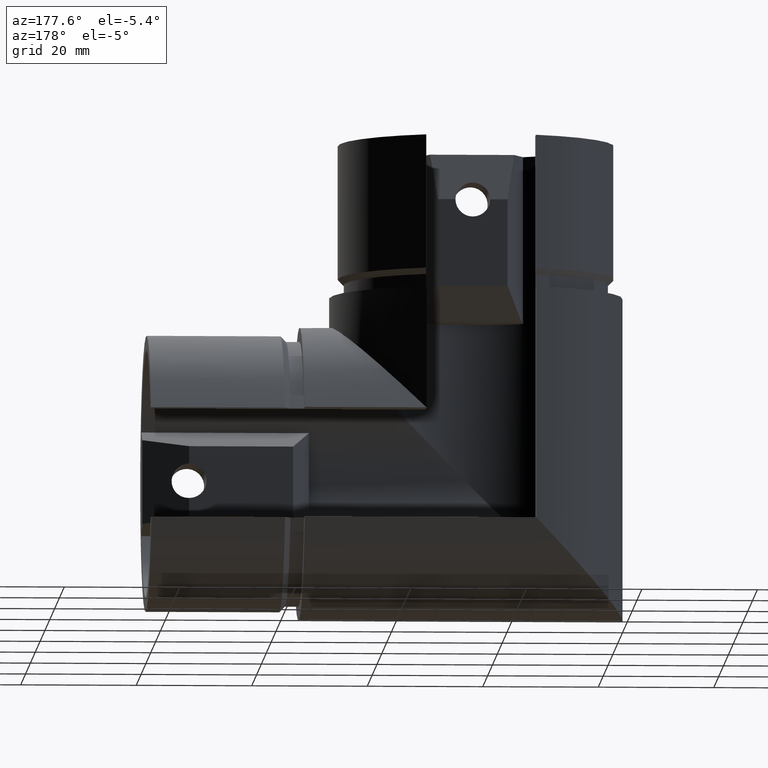
[diagram: clean part render]
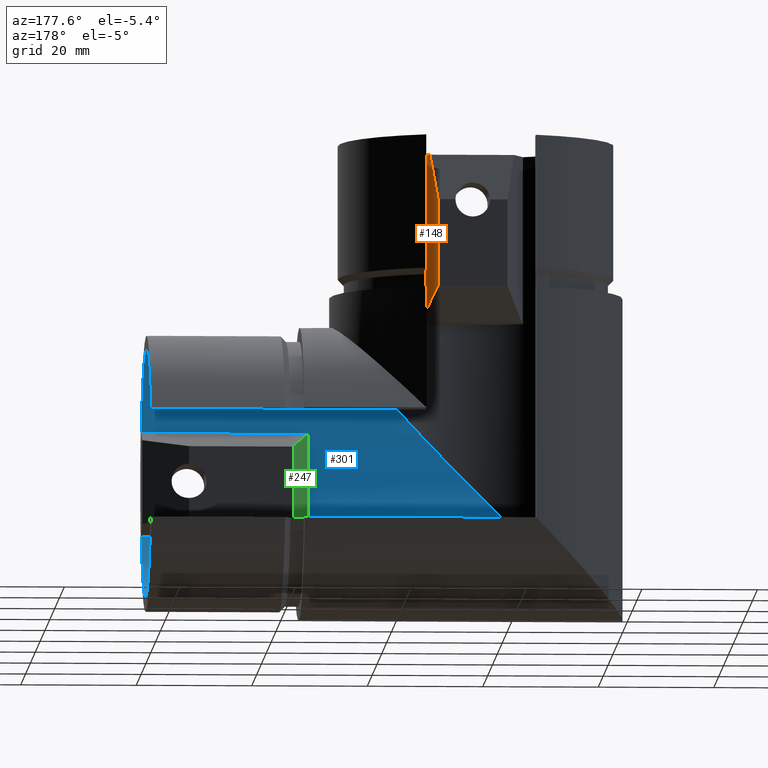
[diagram: same view with three faces highlighted in distinct colors, each labeled with its STEP entity id]
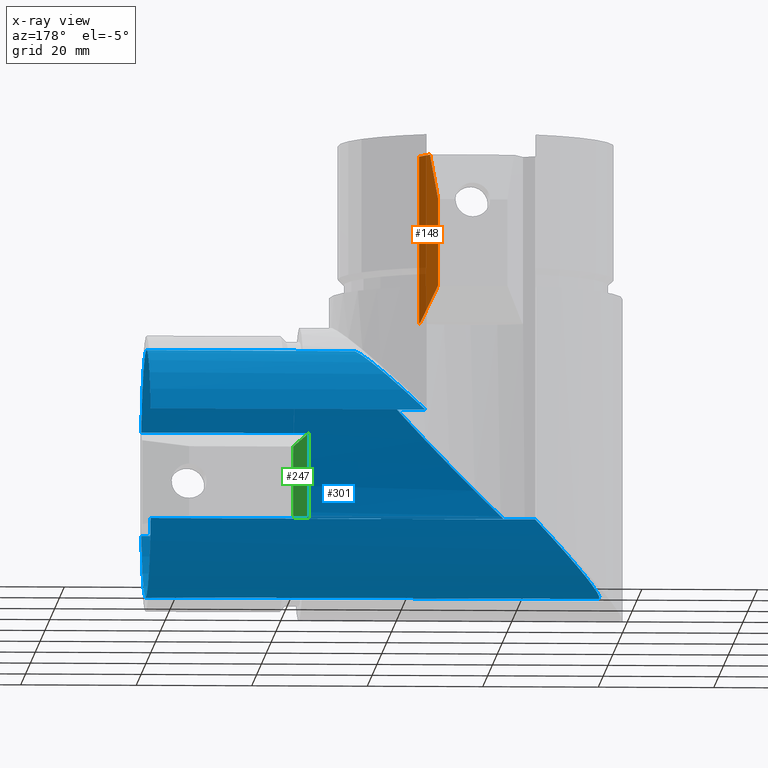
[diagram: x-ray of the same camera — body ghosted, the three highlighted faces saturated]
A machine part, auxiliary view with three faces highlighted in distinct colors.
The next image is the same camera in x-ray (body ghosted, the three faces saturated) — at least one of them is partly hidden behind the body in this view.
Their STEP definitions:

[orange] entity #148 — the highlighted planar face has unit normal (-0.9191, -0.3939, 0).
#148=ADVANCED_FACE('',(#487),#489,.F.);
#487=FACE_BOUND('',#488,.T.);
#488=EDGE_LOOP('',(#1022,#1023,#1024,#1025,#1026,#1027));
#489=PLANE('',#490);
#490=AXIS2_PLACEMENT_3D('',#491,#492,#493);
#491=CARTESIAN_POINT('',(34.4,-19.4,36.5));
#492=DIRECTION('',(-0.919145030018058,-0.393919298579168,0.));
#493=DIRECTION('',(0.,0.,1.));
#1022=ORIENTED_EDGE('',*,*,#1172,.F.);
#1023=ORIENTED_EDGE('',*,*,#1211,.T.);
#1024=ORIENTED_EDGE('',*,*,#1212,.F.);
#1025=ORIENTED_EDGE('',*,*,#1213,.T.);
#1026=ORIENTED_EDGE('',*,*,#1214,.F.);
#1027=ORIENTED_EDGE('',*,*,#1181,.T.);
#1172=EDGE_CURVE('',#1277,#1279,#1280,.F.);
#1181=EDGE_CURVE('',#1296,#1279,#1297,.T.);
#1211=EDGE_CURVE('',#1277,#1348,#1350,.F.);
#1212=EDGE_CURVE('',#1351,#1348,#1352,.T.);
#1213=EDGE_CURVE('',#1351,#1353,#1354,.F.);
#1214=EDGE_CURVE('',#1296,#1353,#1355,.F.);
#1277=VERTEX_POINT('',#1453);
#1279=VERTEX_POINT('',#1457);
#1280=LINE('',#1458,#1459);
#1296=VERTEX_POINT('',#1494);
#1297=LINE('',#1495,#1496);
#1348=VERTEX_POINT('',#1854);
#1350=LINE('',#1858,#1859);
#1351=VERTEX_POINT('',#1861);
#1352=LINE('',#1862,#1863);
#1353=VERTEX_POINT('',#1865);
#1354=LINE('',#1866,#1867);
#1355=LINE('',#1869,#1870);
#1453=CARTESIAN_POINT('',(32.6857142857143,-15.4,82.5));
#1457=CARTESIAN_POINT('',(31.4,-12.4,74.5));
#1458=CARTESIAN_POINT('',(31.4,-12.4,74.5));
#1459=VECTOR('',#1460,1.);
#1460=DIRECTION('',(0.14880607405723,-0.347214172800203,0.925904460800543));
#1494=CARTESIAN_POINT('',(31.4,-12.4,59.5));
#1495=CARTESIAN_POINT('',(31.4,-12.4,59.5));
#1496=VECTOR('',#1497,1.);
#1497=DIRECTION('',(0.,0.,1.));
#1854=CARTESIAN_POINT('',(34.4,-19.4,82.5));
#1858=CARTESIAN_POINT('',(34.4,-19.4,82.5));
#1859=VECTOR('',#1860,1.);
#1860=DIRECTION('',(-0.393919298579167,0.919145030018058,0.));
#1861=CARTESIAN_POINT('',(34.4,-19.4,53.5));
#1862=CARTESIAN_POINT('',(34.4,-19.4,53.5));
#1863=VECTOR('',#1864,1.);
#1864=DIRECTION('',(0.,1.225073682345E-016,1.));
#1865=CARTESIAN_POINT('',(34.1574350900542,-18.8340152101264,53.7425649099458));
#1866=CARTESIAN_POINT('',(34.1574350900541,-18.8340152101264,53.7425649099458));
#1867=VECTOR('',#1868,1.);
#1868=DIRECTION('',(0.366508333068925,-0.855186110494133,-0.366508333068914));
#1869=CARTESIAN_POINT('',(34.1574350900542,-18.8340152101264,53.7425649099458));
#1870=VECTOR('',#1871,1.);
#1871=DIRECTION('',(-0.304233227870767,0.709877531698457,0.635229118546246));

[blue] entity #301 — the highlighted cylindrical surface (partial cylindrical patch) has radius 21.4 mm, axis along (1, 0, -0).
#301=ADVANCED_FACE('',(#606),#608,.F.);
#606=FACE_BOUND('',#607,.T.);
#607=EDGE_LOOP('',(#1120,#1121,#1122,#1123,#1124,#1125,#1126,#1127));
#608=CYLINDRICAL_SURFACE('',#609,21.4);
#609=AXIS2_PLACEMENT_3D('',#610,#611,#612);
#610=CARTESIAN_POINT('',(25.4,0.,25.4));
#611=DIRECTION('',(1.,0.,-6.2219153744317E-017));
#612=DIRECTION('',(0.,1.,0.));
#1120=ORIENTED_EDGE('',*,*,#1262,.F.);
#1121=ORIENTED_EDGE('',*,*,#1263,.F.);
#1122=ORIENTED_EDGE('',*,*,#1222,.T.);
#1123=ORIENTED_EDGE('',*,*,#1251,.T.);
#1124=ORIENTED_EDGE('',*,*,#1257,.F.);
#1125=ORIENTED_EDGE('',*,*,#1241,.T.);
#1126=ORIENTED_EDGE('',*,*,#1219,.T.);
#1127=ORIENTED_EDGE('',*,*,#1261,.F.);
#1219=EDGE_CURVE('',#1363,#1361,#1364,.T.);
#1222=EDGE_CURVE('',#1368,#1366,#1369,.T.);
#1241=EDGE_CURVE('',#1397,#1363,#1400,.T.);
#1251=EDGE_CURVE('',#1366,#1377,#1416,.F.);
#1257=EDGE_CURVE('',#1397,#1377,#1424,.T.);
#1261=EDGE_CURVE('',#1427,#1361,#1429,.T.);
#1262=EDGE_CURVE('',#1430,#1427,#1431,.F.);
#1263=EDGE_CURVE('',#1368,#1430,#1432,.F.);
#1361=VERTEX_POINT('',#1883);
#1363=VERTEX_POINT('',#1887);
#1364=CIRCLE('',#1888,21.4);
#1366=VERTEX_POINT('',#1895);
#1368=VERTEX_POINT('',#1899);
#1369=CIRCLE('',#1900,21.4);
#1377=VERTEX_POINT('',#1921);
#1397=VERTEX_POINT('',#1970);
#1400=LINE('',#1977,#1978);
#1416=LINE('',#2020,#2021);
#1424=(BOUNDED_CURVE()B_SPLINE_CURVE(3,
(#2040,#2041,#2042,#2043,#2044,#2045,#2046),
.UNSPECIFIED.,.F.,.F.)B_SPLINE_CURVE_WITH_KNOTS((4,3,4),
(0.,0.5,1.),
.UNSPECIFIED.)CURVE()GEOMETRIC_REPRESENTATION_ITEM()RATIONAL_B_SPLINE_CURVE((1.,
0.4853100642127,0.4853100642127,1.,0.4853100642127,0.4853100642127,1.))REPRESENTATION_ITEM(
''));
#1427=VERTEX_POINT('',#2054);
#1429=LINE('',#2058,#2059);
#1430=VERTEX_POINT('',#2061);
#1431=CIRCLE('',#2062,21.4);
#1432=LINE('',#2066,#2067);
#1883=CARTESIAN_POINT('',(82.5,-19.4154577592186,34.4));
#1887=CARTESIAN_POINT('',(82.5,19.1757659560185,34.9));
#1888=AXIS2_PLACEMENT_3D('',#1889,#1890,#1891);
#1889=CARTESIAN_POINT('',(82.5,0.,25.4));
#1890=DIRECTION('',(1.,-0.,9.86813786949344E-019));
#1891=DIRECTION('',(-4.38071540935457E-019,0.896063829720493,0.44392523364486));
#1895=CARTESIAN_POINT('',(82.5,19.1757659560185,15.9));
#1899=CARTESIAN_POINT('',(82.5,-19.4154577592186,16.4));
#1900=AXIS2_PLACEMENT_3D('',#1901,#1902,#1903);
#1901=CARTESIAN_POINT('',(82.5,0.,25.4));
#1902=DIRECTION('',(1.,-0.,9.86813786949344E-019));
#1903=DIRECTION('',(4.15015144044117E-019,-0.907264381271895,-0.420560747663552));
#1921=CARTESIAN_POINT('',(15.9,19.1757659560185,15.9));
#1970=CARTESIAN_POINT('',(34.9,19.1757659560185,34.9));
#1977=CARTESIAN_POINT('',(34.9,19.1757659560185,34.9));
#1978=VECTOR('',#1979,1.);
#1979=DIRECTION('',(1.,0.,0.));
#2020=CARTESIAN_POINT('',(15.9,19.1757659560185,15.9));
#2021=VECTOR('',#2022,1.);
#2022=DIRECTION('',(1.,0.,0.));
#2040=CARTESIAN_POINT('',(34.9,19.1757659560185,34.9));
#2041=CARTESIAN_POINT('',(60.5480081247804,6.46930730689537,60.5480081247804));
#2042=CARTESIAN_POINT('',(54.0229700096038,-21.4,54.0229700096038));
#2043=CARTESIAN_POINT('',(25.4,-21.4,25.4));
#2044=CARTESIAN_POINT('',(-3.2229700096038,-21.4,-3.22297000960379));
#2045=CARTESIAN_POINT('',(-9.74800812478041,6.46930730689537,-9.7480081247804));
#2046=CARTESIAN_POINT('',(15.9,19.1757659560185,15.9));
#2054=CARTESIAN_POINT('',(53.5,-19.4154577592186,34.4));
#2058=CARTESIAN_POINT('',(53.5,-19.4154577592186,34.4));
#2059=VECTOR('',#2060,1.);
#2060=DIRECTION('',(1.,0.,2.45014736469E-016));
#2061=CARTESIAN_POINT('',(53.5,-19.4154577592186,16.4));
#2062=AXIS2_PLACEMENT_3D('',#2063,#2064,#2065);
#2063=CARTESIAN_POINT('',(53.5,0.,25.4));
#2064=DIRECTION('',(1.,-0.,-0.));
#2065=DIRECTION('',(0.,-0.907264381271895,0.420560747663551));
#2066=CARTESIAN_POINT('',(53.5,-19.4154577592186,16.4));
#2067=VECTOR('',#2068,1.);
#2068=DIRECTION('',(1.,0.,1.225073682345E-016));

[green] entity #247 — the highlighted planar face has unit normal (0.9191, -0.3939, -0).
#247=ADVANCED_FACE('',(#564),#566,.F.);
#564=FACE_BOUND('',#565,.T.);
#565=EDGE_LOOP('',(#1092,#1093,#1094,#1095));
#566=PLANE('',#567);
#567=AXIS2_PLACEMENT_3D('',#568,#569,#570);
#568=CARTESIAN_POINT('',(53.5,-19.4,54.4));
#569=DIRECTION('',(0.919145030018057,-0.393919298579169,-2.41290082828571E-017));
#570=DIRECTION('',(-3.12533439831655E-033,6.125368411725E-017,-1.));
#1092=ORIENTED_EDGE('',*,*,#1252,.F.);
#1093=ORIENTED_EDGE('',*,*,#1215,.F.);
#1094=ORIENTED_EDGE('',*,*,#1197,.T.);
#1095=ORIENTED_EDGE('',*,*,#1226,.T.);
#1197=EDGE_CURVE('',#1325,#1323,#1326,.T.);
#1215=EDGE_CURVE('',#1325,#1356,#1357,.F.);
#1226=EDGE_CURVE('',#1323,#1373,#1375,.F.);
#1252=EDGE_CURVE('',#1356,#1373,#1417,.T.);
#1323=VERTEX_POINT('',#1688);
#1325=VERTEX_POINT('',#1692);
#1326=LINE('',#1693,#1694);
#1356=VERTEX_POINT('',#1872);
#1357=LINE('',#1873,#1874);
#1373=VERTEX_POINT('',#1911);
#1375=LINE('',#1915,#1916);
#1417=LINE('',#2023,#2024);
#1688=CARTESIAN_POINT('',(56.5,-12.4,19.4));
#1692=CARTESIAN_POINT('',(56.5,-12.4,31.4));
#1693=CARTESIAN_POINT('',(56.5,-12.4,31.4));
#1694=VECTOR('',#1695,1.);
#1695=DIRECTION('',(0.,0.,-1.));
#1872=CARTESIAN_POINT('',(53.5,-19.4,34.4));
#1873=CARTESIAN_POINT('',(53.5,-19.4,34.4));
#1874=VECTOR('',#1875,1.);
#1875=DIRECTION('',(0.366508333068916,0.855186110494136,-0.366508333068916));
#1911=CARTESIAN_POINT('',(53.5,-19.4,16.4));
#1915=CARTESIAN_POINT('',(53.5,-19.4,16.4));
#1916=VECTOR('',#1917,1.);
#1917=DIRECTION('',(0.366508333068917,0.855186110494136,0.366508333068915));
#2023=CARTESIAN_POINT('',(53.5,-19.4,34.4));
#2024=VECTOR('',#2025,1.);
#2025=DIRECTION('',(0.,0.,-1.));